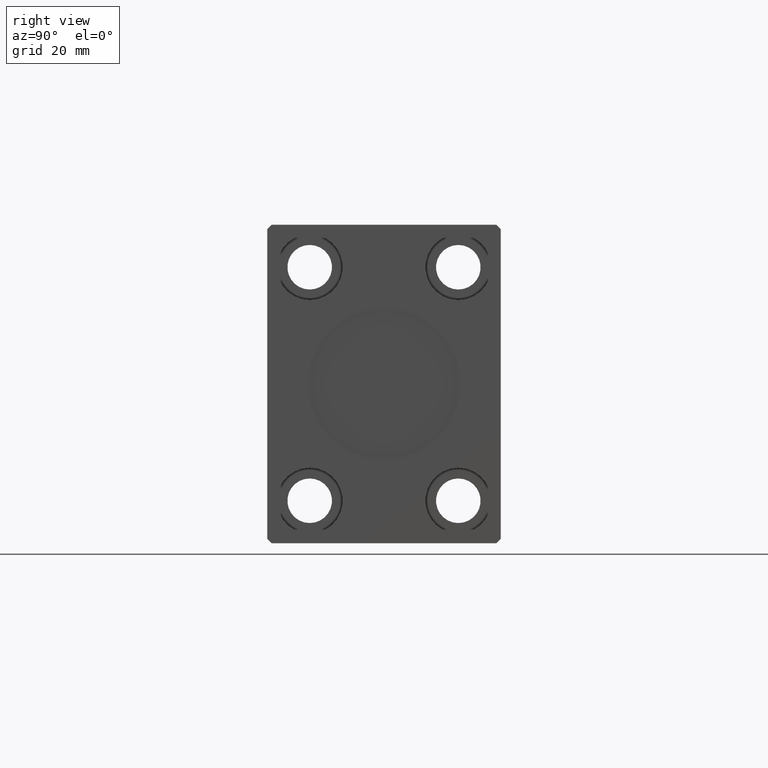
[diagram: clean part render]
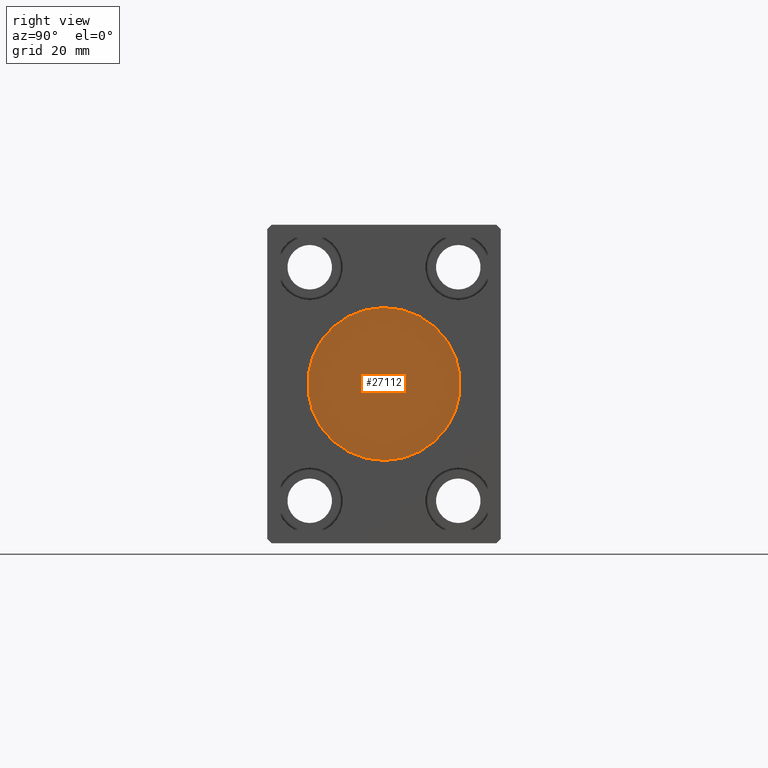
[diagram: same view with one face highlighted and labeled with its STEP entity id]
A machine part, right view. The second image highlights one B-rep face of the part: STEP entity #27112.
In plain terms, the highlighted planar face has unit normal (1, 0, 0).
Its self-contained STEP definition (entity closure, byte-faithful):
#701 = EDGE_CURVE ( 'NONE', #25860, #32709, #8633, .T. ) ;
#825 = DIRECTION ( 'NONE',  ( 1.000000000000000000, 0.000000000000000000, 0.000000000000000000 ) ) ;
#1039 = FACE_OUTER_BOUND ( 'NONE', #15248, .T. ) ;
#3193 = EDGE_CURVE ( 'NONE', #32709, #25860, #16939, .T. ) ;
#3840 = DIRECTION ( 'NONE',  ( 1.000000000000000000, 0.000000000000000000, 0.000000000000000000 ) ) ;
#4767 = ORIENTED_EDGE ( 'NONE', *, *, #3193, .T. ) ;
#8633 = CIRCLE ( 'NONE', #32645, 18.00000000000000000 ) ;
#10908 = CARTESIAN_POINT ( 'NONE',  ( 144.7999999999999829, 0.000000000000000000, 0.000000000000000000 ) ) ;
#14116 = PLANE ( 'NONE',  #19889 ) ;
#15248 = EDGE_LOOP ( 'NONE', ( #41895, #4767 ) ) ;
#16239 = AXIS2_PLACEMENT_3D ( 'NONE', #24916, #31138, #27286 ) ;
#16939 = CIRCLE ( 'NONE', #16239, 18.00000000000000000 ) ;
#17547 = CARTESIAN_POINT ( 'NONE',  ( 144.7999999999999829, 0.000000000000000000, 0.000000000000000000 ) ) ;
#19889 = AXIS2_PLACEMENT_3D ( 'NONE', #10908, #3840, #37122 ) ;
#24916 = CARTESIAN_POINT ( 'NONE',  ( 144.7999999999999829, 0.000000000000000000, 0.000000000000000000 ) ) ;
#25860 = VERTEX_POINT ( 'NONE', #26474 ) ;
#26474 = CARTESIAN_POINT ( 'NONE',  ( 144.7999999999999829, 0.000000000000000000, -18.00000000000000000 ) ) ;
#27112 = ADVANCED_FACE ( 'NONE', ( #1039 ), #14116, .T. ) ;
#27286 = DIRECTION ( 'NONE',  ( 0.000000000000000000, 0.000000000000000000, -1.000000000000000000 ) ) ;
#29082 = CARTESIAN_POINT ( 'NONE',  ( 144.7999999999999829, 2.204364238465235428E-15, 18.00000000000000000 ) ) ;
#30664 = DIRECTION ( 'NONE',  ( 0.000000000000000000, 0.000000000000000000, -1.000000000000000000 ) ) ;
#31138 = DIRECTION ( 'NONE',  ( 1.000000000000000000, 0.000000000000000000, 0.000000000000000000 ) ) ;
#32645 = AXIS2_PLACEMENT_3D ( 'NONE', #17547, #825, #30664 ) ;
#32709 = VERTEX_POINT ( 'NONE', #29082 ) ;
#37122 = DIRECTION ( 'NONE',  ( 0.000000000000000000, 0.000000000000000000, -1.000000000000000000 ) ) ;
#41895 = ORIENTED_EDGE ( 'NONE', *, *, #701, .T. ) ;